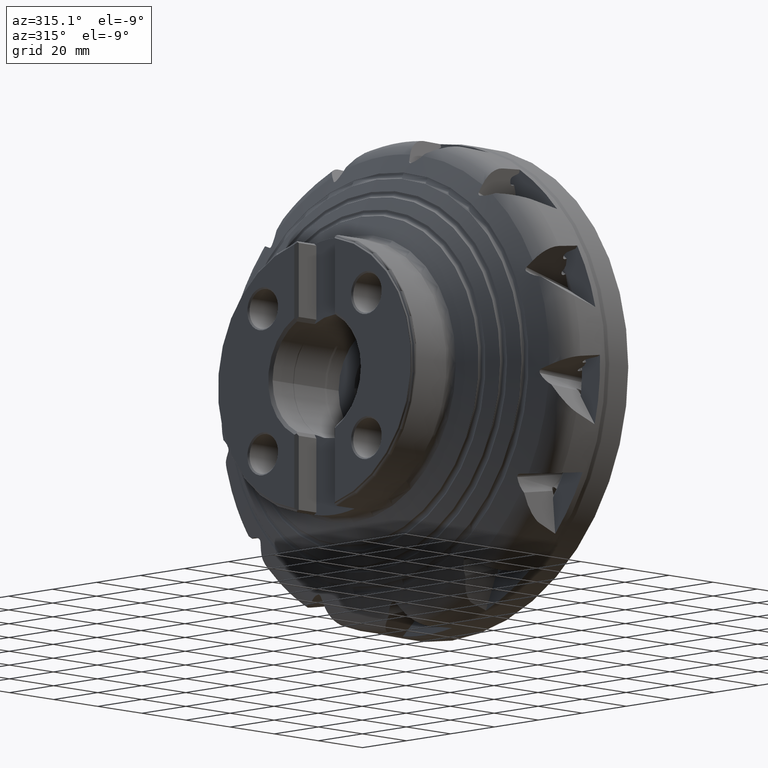
[diagram: clean part render]
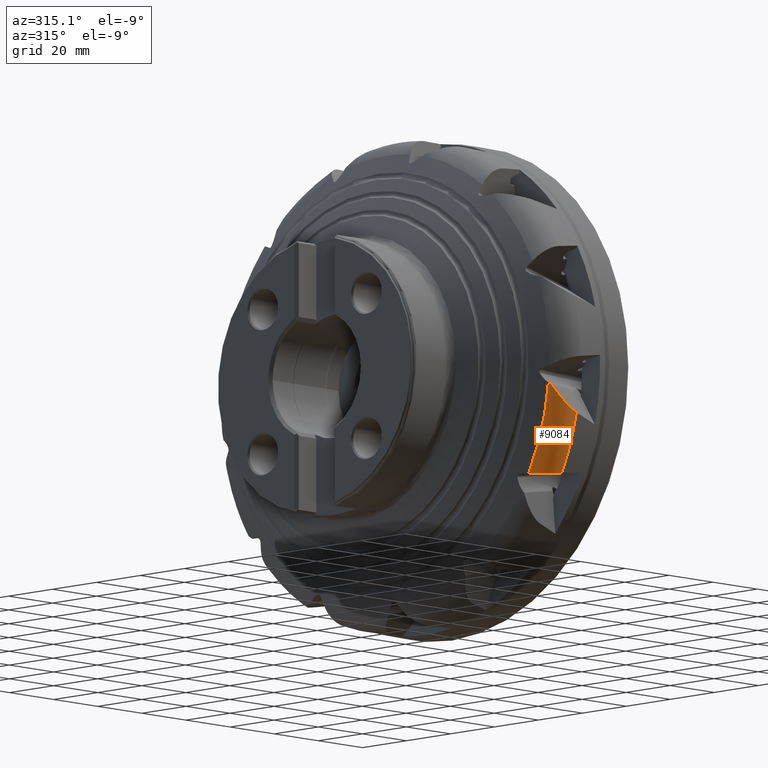
[diagram: same view with one face highlighted and labeled with its STEP entity id]
A machine part, auxiliary view. The second image highlights one B-rep face of the part: STEP entity #9084.
In plain terms, the highlighted toroidal blend (fillet) surface has major radius 69.575 mm and minor (blend) radius 10 mm.
Its self-contained STEP definition (entity closure, byte-faithful):
#115 = AXIS2_PLACEMENT_3D ( 'NONE', #7594, #7595, #7596 ) ;
#1564 = ORIENTED_EDGE ( 'NONE', *, *, #5076, .F. ) ;
#1565 = ORIENTED_EDGE ( 'NONE', *, *, #3685, .T. ) ;
#1566 = ORIENTED_EDGE ( 'NONE', *, *, #5066, .F. ) ;
#1567 = ORIENTED_EDGE ( 'NONE', *, *, #17520, .F. ) ;
#1568 = ORIENTED_EDGE ( 'NONE', *, *, #5072, .F. ) ;
#2335 = EDGE_LOOP ( 'NONE', ( #1564, #1565, #1566, #1567, #1568 ) ) ;
#3376 = CARTESIAN_POINT ( 'NONE',  ( -28.82220633424767800, -73.87898263121989800, -7.740402933271643500 ) ) ;
#3410 = CARTESIAN_POINT ( 'NONE',  ( -28.82220633424789800, -64.81336079680411900, -36.29388618509477000 ) ) ;
#3424 = CARTESIAN_POINT ( 'NONE',  ( -28.31052783251978500, -74.67097237325607800, -8.354936851502870400 ) ) ;
#3685 = EDGE_CURVE ( 'NONE', #9918, #9952, #10436, .T. ) ;
#5066 = EDGE_CURVE ( 'NONE', #7663, #9952, #13008, .T. ) ;
#5072 = EDGE_CURVE ( 'NONE', #9966, #7719, #13105, .T. ) ;
#5076 = EDGE_CURVE ( 'NONE', #9918, #9966, #13107, .T. ) ;
#5256 = AXIS2_PLACEMENT_3D ( 'NONE', #13302, #13313, #13314 ) ;
#6236 = CIRCLE ( 'NONE', #115, 79.57500000000000300 ) ;
#7594 = CARTESIAN_POINT ( 'NONE',  ( -20.00000000000000000, 0.0000000000000000000, 0.0000000000000000000 ) ) ;
#7595 = DIRECTION ( 'NONE',  ( 1.000000000000000000, -0.0000000000000000000, -0.0000000000000000000 ) ) ;
#7596 = DIRECTION ( 'NONE',  ( 0.0000000000000000000, 0.0000000000000000000, -1.000000000000000000 ) ) ;
#7663 = VERTEX_POINT ( 'NONE', #15243 ) ;
#7719 = VERTEX_POINT ( 'NONE', #15299 ) ;
#9084 = ADVANCED_FACE ( 'NONE', ( #17580 ), #17593, .T. ) ;
#9918 = VERTEX_POINT ( 'NONE', #3376 ) ;
#9952 = VERTEX_POINT ( 'NONE', #3410 ) ;
#9966 = VERTEX_POINT ( 'NONE', #3424 ) ;
#10436 = CIRCLE ( 'NONE', #5256, 74.28336228384736700 ) ;
#13008 = B_SPLINE_CURVE_WITH_KNOTS ( 'NONE', 3,
 ( #14360, #14370, #14371, #14372, #14373, #14374, #14375, #14376, #14377, #14378, #14379, #14380, #14381, #14382, #14383, #14384 ),
 .UNSPECIFIED., .F., .F.,
 ( 4, 2, 2, 2, 2, 2, 2, 4 ),
 ( 1.991925409404609200E-007, 0.002822397382186396200, 0.004233496477009123000, 0.005644595571831849700, 0.007055694666654577400, 0.008466793761477303300, 0.009877892856300030100, 0.01128899195112275700 ),
 .UNSPECIFIED. ) ;
#13105 = B_SPLINE_CURVE_WITH_KNOTS ( 'NONE', 3,
 ( #14365, #14410, #14412, #14414, #14416, #14418, #14420, #14422, #14424, #14426, #14428, #14430, #14432, #14434, #14436, #14437, #14439, #14441 ),
 .UNSPECIFIED., .F., .F.,
 ( 4, 2, 2, 2, 2, 2, 2, 2, 4 ),
 ( 0.001367446187141010000, 0.004525136330595567300, 0.006103981402322845700, 0.007682826474050124900, 0.009261671545777405000, 0.01005109408164103900, 0.01084051661750467400, 0.01241936168923195300, 0.01399820676095923200 ),
 .UNSPECIFIED. ) ;
#13107 = B_SPLINE_CURVE_WITH_KNOTS ( 'NONE', 3,
 ( #14452, #14472, #14474, #14476 ),
 .UNSPECIFIED., .F., .F.,
 ( 4, 4 ),
 ( 1.931510208269956700E-015, 0.001125484152390434600 ),
 .UNSPECIFIED. ) ;
#13302 = CARTESIAN_POINT ( 'NONE',  ( -28.82220633424789800, 0.0000000000000000000, 0.0000000000000000000 ) ) ;
#13313 = DIRECTION ( 'NONE',  ( 1.000000000000000000, -0.0000000000000000000, -0.0000000000000000000 ) ) ;
#13314 = DIRECTION ( 'NONE',  ( 0.0000000000000000000, 0.0000000000000000000, -1.000000000000000000 ) ) ;
#14360 = CARTESIAN_POINT ( 'NONE',  ( -19.99999999999999600, -71.06513921432512900, -35.80400275735372200 ) ) ;
#14365 = CARTESIAN_POINT ( 'NONE',  ( -28.31052783251978500, -74.67097237325607800, -8.354936851502870400 ) ) ;
#14370 = CARTESIAN_POINT ( 'NONE',  ( -20.94454390258667300, -71.00165133346469300, -35.93001590516696100 ) ) ;
#14371 = CARTESIAN_POINT ( 'NONE',  ( -21.85800192112045400, -70.80148337201242700, -36.03503216274612000 ) ) ;
#14372 = CARTESIAN_POINT ( 'NONE',  ( -23.18482293091945200, -70.31055739832399400, -36.16326507011682200 ) ) ;
#14373 = CARTESIAN_POINT ( 'NONE',  ( -23.62051843688414400, -70.11359175809877800, -36.20103185821099600 ) ) ;
#14374 = CARTESIAN_POINT ( 'NONE',  ( -24.45115936546352100, -69.66797024116509400, -36.26451998930709700 ) ) ;
#14375 = CARTESIAN_POINT ( 'NONE',  ( -24.84962601026392200, -69.41822575987623600, -36.29060766198776400 ) ) ;
#14376 = CARTESIAN_POINT ( 'NONE',  ( -25.61393447058361500, -68.86659976631096900, -36.33183362867786300 ) ) ;
#14377 = CARTESIAN_POINT ( 'NONE',  ( -25.98193481022258700, -68.56258654538899600, -36.34701867526431600 ) ) ;
#14378 = CARTESIAN_POINT ( 'NONE',  ( -26.67361471287396700, -67.91204414467506500, -36.36595176834782000 ) ) ;
#14379 = CARTESIAN_POINT ( 'NONE',  ( -26.99594152305274300, -67.56741824694830700, -36.36973940176744700 ) ) ;
#14380 = CARTESIAN_POINT ( 'NONE',  ( -27.59590655551107500, -66.84138131550342600, -36.36652144422868100 ) ) ;
#14381 = CARTESIAN_POINT ( 'NONE',  ( -27.87353464621234200, -66.45996194203903000, -36.35951340628324100 ) ) ;
#14382 = CARTESIAN_POINT ( 'NONE',  ( -28.38408228079670800, -65.66032163005759500, -36.33469928551986100 ) ) ;
#14383 = CARTESIAN_POINT ( 'NONE',  ( -28.61629477230727800, -65.24268971520940900, -36.31686462355477800 ) ) ;
#14384 = CARTESIAN_POINT ( 'NONE',  ( -28.82220633424789800, -64.81336079680411900, -36.29388618509477000 ) ) ;
#14410 = CARTESIAN_POINT ( 'NONE',  ( -27.93905540662620600, -75.13125615029717600, -9.232818213127501400 ) ) ;
#14412 = CARTESIAN_POINT ( 'NONE',  ( -27.50187449634835000, -75.55973531732175300, -10.08984829629138200 ) ) ;
#14414 = CARTESIAN_POINT ( 'NONE',  ( -26.72677613267615700, -76.14469670700160000, -11.33752737539903200 ) ) ;
#14416 = CARTESIAN_POINT ( 'NONE',  ( -26.44838606011847300, -76.32999172530350100, -11.74706619973400200 ) ) ;
#14418 = CARTESIAN_POINT ( 'NONE',  ( -25.84526201049822100, -76.67815011060326900, -12.55143753358257200 ) ) ;
#14420 = CARTESIAN_POINT ( 'NONE',  ( -25.51891429390718700, -76.84150195006880300, -12.94773297413845400 ) ) ;
#14422 = CARTESIAN_POINT ( 'NONE',  ( -24.82773433689038400, -77.13451809385121300, -13.70468317062774800 ) ) ;
#14424 = CARTESIAN_POINT ( 'NONE',  ( -24.46165616378710800, -77.26514671276937900, -14.06738087330627900 ) ) ;
#14426 = CARTESIAN_POINT ( 'NONE',  ( -23.87738041934988700, -77.43383992409039300, -14.58435284447844900 ) ) ;
#14428 = CARTESIAN_POINT ( 'NONE',  ( -23.67674006493705000, -77.48551230409722700, -14.75214744318576400 ) ) ;
#14430 = CARTESIAN_POINT ( 'NONE',  ( -23.26259143035844400, -77.57888372942258600, -15.07782740463627600 ) ) ;
#14432 = CARTESIAN_POINT ( 'NONE',  ( -23.04839617698453200, -77.62065416729738800, -15.23612311240139400 ) ) ;
#14434 = CARTESIAN_POINT ( 'NONE',  ( -22.39519296196123900, -77.72778233130442500, -15.68734883742064700 ) ) ;
#14436 = CARTESIAN_POINT ( 'NONE',  ( -21.94306842459027300, -77.77582069246520300, -15.95904996726520500 ) ) ;
#14437 = CARTESIAN_POINT ( 'NONE',  ( -21.00145250218994200, -77.81944384244995700, -16.43713091934469300 ) ) ;
#14439 = CARTESIAN_POINT ( 'NONE',  ( -20.51205027761074000, -77.81515378992163800, -16.64366660372902000 ) ) ;
#14441 = CARTESIAN_POINT ( 'NONE',  ( -19.99999999999999600, -77.77907161784291600, -16.81061103191860400 ) ) ;
#14452 = CARTESIAN_POINT ( 'NONE',  ( -28.82220633424767800, -73.87898263121989800, -7.740402933271643500 ) ) ;
#14472 = CARTESIAN_POINT ( 'NONE',  ( -28.67103406910292300, -74.14027039513722200, -7.964880966878896900 ) ) ;
#14474 = CARTESIAN_POINT ( 'NONE',  ( -28.50128156721082500, -74.40491511159862600, -8.169562241813030900 ) ) ;
#14476 = CARTESIAN_POINT ( 'NONE',  ( -28.31052783251978500, -74.67097237325607800, -8.354936851502870400 ) ) ;
#15243 = CARTESIAN_POINT ( 'NONE',  ( -19.99999999999999600, -71.06513921432512900, -35.80400275735372200 ) ) ;
#15299 = CARTESIAN_POINT ( 'NONE',  ( -19.99999999999999600, -77.77907161784291600, -16.81061103191860400 ) ) ;
#16715 = AXIS2_PLACEMENT_3D ( 'NONE', #19636, #19628, #19638 ) ;
#17520 = EDGE_CURVE ( 'NONE', #7719, #7663, #6236, .T. ) ;
#17580 = FACE_OUTER_BOUND ( 'NONE', #2335, .T. ) ;
#17593 = TOROIDAL_SURFACE ( 'NONE', #16715, 69.57500000000000300, 10.00000000000000900 ) ;
#19628 = DIRECTION ( 'NONE',  ( 1.000000000000000000, -0.0000000000000000000, -0.0000000000000000000 ) ) ;
#19636 = CARTESIAN_POINT ( 'NONE',  ( -20.00000000000000000, 0.0000000000000000000, 0.0000000000000000000 ) ) ;
#19638 = DIRECTION ( 'NONE',  ( 0.0000000000000000000, 0.0000000000000000000, -1.000000000000000000 ) ) ;